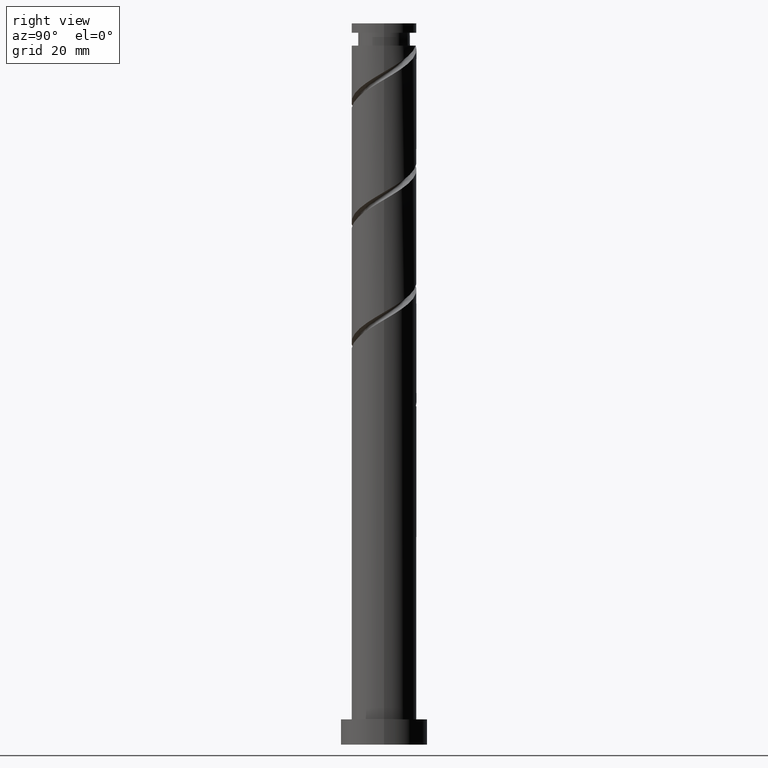
[diagram: clean part render]
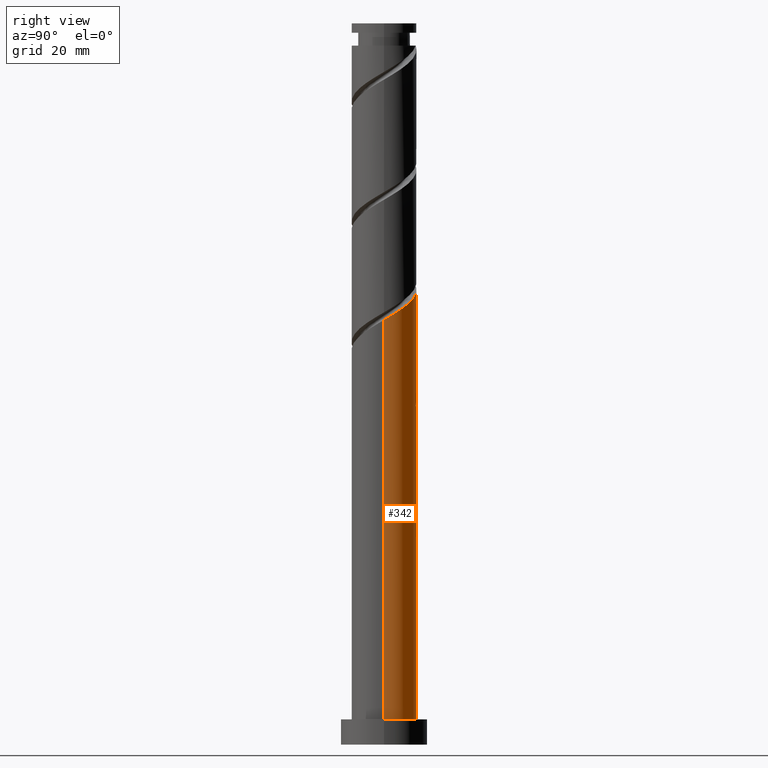
[diagram: same view with one face highlighted and labeled with its STEP entity id]
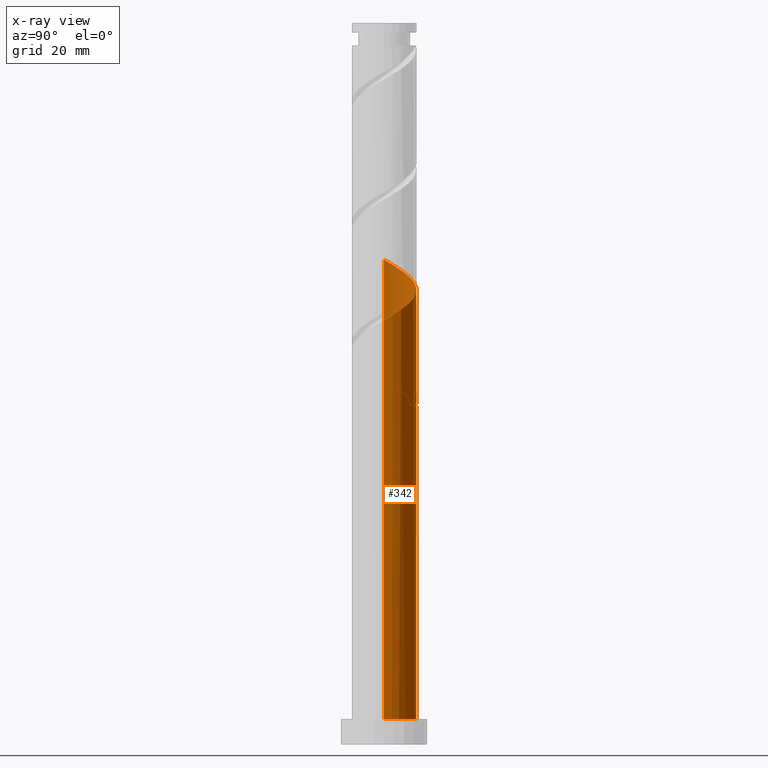
[diagram: x-ray of the same camera — body ghosted, the highlighted face saturated]
A machine part, right view. The second image highlights one B-rep face of the part: STEP entity #342.
The next image is the same camera in x-ray: the body ghosted, the highlighted face saturated — about 0% of this face is hidden behind the body in this view.
In plain terms, the highlighted cylindrical surface (edge-blend (fillet) strip) has radius 9 mm, axis along (-0, -0, -1).
Its self-contained STEP definition (entity closure, byte-faithful):
#17 = VERTEX_POINT ( 'NONE', #799 ) ;
#20 = EDGE_CURVE ( 'NONE', #559, #1390, #1598, .T. ) ;
#32 = CIRCLE ( 'NONE', #984, 9.000000000000001776 ) ;
#62 = CARTESIAN_POINT ( 'NONE',  ( -9.000000000000001776, 0.000000000000000000, 7.000000000000000000 ) ) ;
#101 = CARTESIAN_POINT ( 'NONE',  ( -0.5528326656022128915, 8.983004844919275200, 95.21396915586799992 ) ) ;
#111 = CARTESIAN_POINT ( 'NONE',  ( -8.910223043744863958, 1.735467689275518088, 100.0750802669791000 ) ) ;
#114 = CARTESIAN_POINT ( 'NONE',  ( -0.6298023580710770952, 9.055786646093720194, 126.4639691558679999 ) ) ;
#128 = CARTESIAN_POINT ( 'NONE',  ( -9.000000000000015987, 0.2766775649190528208, 134.2650165904075834 ) ) ;
#138 =( BOUNDED_CURVE ( )  B_SPLINE_CURVE ( 2, ( #1000, #285, #1359, #426, #960, #1496, #294, #824, #1369, #161, #1644, #228, #101, #1009, #1535 ),
 .UNSPECIFIED., .F., .T. ) 
 B_SPLINE_CURVE_WITH_KNOTS ( ( 3, 2, 2, 2, 2, 2, 2, 3 ),
 ( 0.9295317669814463502, 0.9375000000000000000, 0.9479166666666666297, 0.9583333333333333703, 0.9687500000000000000, 0.9791666666666666297, 0.9895833333333333703, 1.000000000000000000 ),
 .UNSPECIFIED. ) 
 CURVE ( )  GEOMETRIC_REPRESENTATION_ITEM ( )  RATIONAL_B_SPLINE_CURVE ( ( 0.9062941362546337309, 0.9031415850403380352, 0.9090909090909135015, 0.9013135103398318693, 0.9090909090909135015, 0.9013135103398318693, 0.9090909090909135015, 0.9013135103398318693, 0.9090909090909135015, 0.9013135103398318693, 0.9090909090909135015, 0.9013135103398318693, 0.9090909090909135015, 0.9013135103398318693, 0.9090909090909135015 ) ) 
 REPRESENTATION_ITEM ( '' )  );
#158 = LINE ( 'NONE', #1485, #1034 ) ;
#161 = CARTESIAN_POINT ( 'NONE',  ( -3.982468481593946397, 8.157442465804569665, 97.29730248920135693 ) ) ;
#187 = DIRECTION ( 'NONE',  ( -0.000000000000000000, -0.000000000000000000, -1.000000000000000000 ) ) ;
#199 = DIRECTION ( 'NONE',  ( -1.000000000000000000, 0.000000000000000000, 0.000000000000000000 ) ) ;
#222 = CARTESIAN_POINT ( 'NONE',  ( 1.790977386791920090, 8.820000000000000284, 93.82508026697911419 ) ) ;
#228 = CARTESIAN_POINT ( 'NONE',  ( -1.735467689275513425, 8.910223043744847971, 95.90841360031247120 ) ) ;
#259 = CARTESIAN_POINT ( 'NONE',  ( 8.820000000000012719, 1.790977386791917647, 118.8250802669791000 ) ) ;
#263 = CARTESIAN_POINT ( 'NONE',  ( -4.012735290006256506, 8.055926730819901849, 95.21396915586798571 ) ) ;
#267 = EDGE_CURVE ( 'NONE', #1050, #1477, #138, .T. ) ;
#272 = ORIENTED_EDGE ( 'NONE', *, *, #917, .F. ) ;
#277 = CARTESIAN_POINT ( 'NONE',  ( -5.073318164499761806, 7.527640107733495789, 95.90841360031247120 ) ) ;
#279 = VERTEX_POINT ( 'NONE', #1160 ) ;
#285 = CARTESIAN_POINT ( 'NONE',  ( -9.000000000000001776, 0.9045340337332984371, 102.6885538863332386 ) ) ;
#294 = CARTESIAN_POINT ( 'NONE',  ( -6.742855367982788728, 5.961031914565270817, 99.38063582253468553 ) ) ;
#342 = ADVANCED_FACE ( 'NONE', ( #1441 ), #867, .T. ) ;
#370 = VERTEX_POINT ( 'NONE', #62 ) ;
#395 = CARTESIAN_POINT ( 'NONE',  ( -9.000000000000001776, 0.000000000000000000, 200.0000000000000000 ) ) ;
#400 = CARTESIAN_POINT ( 'NONE',  ( -8.533832754774719476, 2.858968085434737016, 132.7139691558679715 ) ) ;
#412 = CARTESIAN_POINT ( 'NONE',  ( 7.527640107733501118, 5.073318164499759142, 120.9084136003124428 ) ) ;
#426 = CARTESIAN_POINT ( 'NONE',  ( -8.584213353906296362, 2.952152415512749872, 101.4639691558679999 ) ) ;
#449 = ORIENTED_EDGE ( 'NONE', *, *, #1196, .T. ) ;
#507 = EDGE_CURVE ( 'NONE', #569, #17, #1176, .T. ) ;
#531 = CARTESIAN_POINT ( 'NONE',  ( -4.012735290006256506, 8.055926730819901849, 128.5473024892013143 ) ) ;
#542 = CARTESIAN_POINT ( 'NONE',  ( -6.848745664630791374, 5.958070628232109200, 130.6306358225347140 ) ) ;
#559 = VERTEX_POINT ( 'NONE', #1253 ) ;
#569 = VERTEX_POINT ( 'NONE', #821 ) ;
#646 = CARTESIAN_POINT ( 'NONE',  ( -9.000000000000014211, -5.652530519688418356E-15, 134.4281802784357467 ) ) ;
#650 = CARTESIAN_POINT ( 'NONE',  ( -5.961031914565277035, 6.742855367982801162, 96.60285804475687144 ) ) ;
#653 = CARTESIAN_POINT ( 'NONE',  ( -8.910223043744863958, 1.735467689275518088, 133.4084136003124286 ) ) ;
#660 = DIRECTION ( 'NONE',  ( -6.847750913376832828E-30, -1.156482317317870976E-14, -1.000000000000000000 ) ) ;
#661 = CARTESIAN_POINT ( 'NONE',  ( 1.735467689275523417, 8.910223043744862181, 125.0750802669791142 ) ) ;
#670 = AXIS2_PLACEMENT_3D ( 'NONE', #893, #1407, #199 ) ;
#695 = CARTESIAN_POINT ( 'NONE',  ( -9.000000000000014211, -5.652530519688419145E-15, 101.0948469451023755 ) ) ;
#701 = EDGE_CURVE ( 'NONE', #559, #279, #158, .T. ) ;
#756 = ORIENTED_EDGE ( 'NONE', *, *, #507, .F. ) ;
#793 = ORIENTED_EDGE ( 'NONE', *, *, #701, .T. ) ;
#797 = CARTESIAN_POINT ( 'NONE',  ( -7.503094065217687181, 4.970269554913030241, 97.99174693364575717 ) ) ;
#799 = CARTESIAN_POINT ( 'NONE',  ( -9.000000000000014211, -5.652530519688418356E-15, 101.0948469451023755 ) ) ;
#809 = CARTESIAN_POINT ( 'NONE',  ( -6.848745664630791374, 5.958070628232109200, 97.29730248920134272 ) ) ;
#810 = CARTESIAN_POINT ( 'NONE',  ( 0.000000000000000000, 0.000000000000000000, 93.82508026697922787 ) ) ;
#811 = CARTESIAN_POINT ( 'NONE',  ( -1.790977386791917203, 8.820000000000012719, 127.1584136003124144 ) ) ;
#813 = DIRECTION ( 'NONE',  ( -0.000000000000000000, -0.000000000000000000, -1.000000000000000000 ) ) ;
#815 = CARTESIAN_POINT ( 'NONE',  ( -9.000000000000012434, 0.2766775649190551523, 100.9316832570742122 ) ) ;
#821 = CARTESIAN_POINT ( 'NONE',  ( -1.790977386791917203, 8.820000000000012719, 93.82508026697911419 ) ) ;
#824 = CARTESIAN_POINT ( 'NONE',  ( -5.958070628232096766, 6.848745664630782493, 98.68619137809022845 ) ) ;
#830 = CIRCLE ( 'NONE', #1456, 9.000000000000001776 ) ;
#850 = CARTESIAN_POINT ( 'NONE',  ( 0.000000000000000000, 0.000000000000000000, 7.000000000000000000 ) ) ;
#860 = DIRECTION ( 'NONE',  ( 1.000000000000000000, 0.000000000000000000, 0.000000000000000000 ) ) ;
#867 = CYLINDRICAL_SURFACE ( 'NONE', #670, 9.000000000000001776 ) ;
#881 = DIRECTION ( 'NONE',  ( -0.000000000000000000, -0.000000000000000000, -1.000000000000000000 ) ) ;
#893 = CARTESIAN_POINT ( 'NONE',  ( 0.000000000000000000, 0.000000000000000000, 200.0000000000000000 ) ) ;
#917 = EDGE_CURVE ( 'NONE', #17, #370, #1024, .T. ) ;
#921 = CARTESIAN_POINT ( 'NONE',  ( 9.000000000000014211, 2.093529822106821769E-16, 117.7615136117690611 ) ) ;
#926 = CARTESIAN_POINT ( 'NONE',  ( -2.952152415512752981, 8.584213353906312349, 94.51952471142355705 ) ) ;
#934 = CARTESIAN_POINT ( 'NONE',  ( -2.952152415512752981, 8.584213353906312349, 127.8528580447568999 ) ) ;
#945 = CARTESIAN_POINT ( 'NONE',  ( -8.157442465804583875, 3.982468481593956167, 132.0195247114235713 ) ) ;
#951 = CARTESIAN_POINT ( 'NONE',  ( 3.982468481593958387, 8.157442465804582099, 123.6861913780902285 ) ) ;
#960 = CARTESIAN_POINT ( 'NONE',  ( -8.055926730819891191, 4.012735290006253841, 100.7695247114235571 ) ) ;
#982 = EDGE_LOOP ( 'NONE', ( #1704, #793, #449, #272, #756, #1184, #1548, #1482 ) ) ;
#984 = AXIS2_PLACEMENT_3D ( 'NONE', #810, #660, #1358 ) ;
#1000 = CARTESIAN_POINT ( 'NONE',  ( -9.000000000000000000, 1.016857342166178170E-14, 103.2219802555224959 ) ) ;
#1009 = CARTESIAN_POINT ( 'NONE',  ( 0.6298023580710870872, 9.055786646093704206, 94.51952471142358547 ) ) ;
#1024 = LINE ( 'NONE', #1149, #1403 ) ;
#1034 = VECTOR ( 'NONE', #187, 1000.000000000000000 ) ;
#1050 = VERTEX_POINT ( 'NONE', #1198 ) ;
#1067 = CARTESIAN_POINT ( 'NONE',  ( -5.961031914565277035, 6.742855367982801162, 129.9361913780901716 ) ) ;
#1072 = EDGE_CURVE ( 'NONE', #1390, #1050, #1322, .T. ) ;
#1079 = CARTESIAN_POINT ( 'NONE',  ( 4.970269554913031129, 7.503094065217685404, 122.9917469336457714 ) ) ;
#1084 = VECTOR ( 'NONE', #813, 1000.000000000000000 ) ;
#1086 = CARTESIAN_POINT ( 'NONE',  ( 5.958070628232114530, 6.848745664630788710, 122.2973024892013427 ) ) ;
#1100 = CARTESIAN_POINT ( 'NONE',  ( -8.983004844919284082, 0.5528326656022175545, 100.7695247114235428 ) ) ;
#1149 = CARTESIAN_POINT ( 'NONE',  ( -9.000000000000001776, 0.000000000000000000, 200.0000000000000000 ) ) ;
#1160 = CARTESIAN_POINT ( 'NONE',  ( 9.000000000000001776, 1.102182119232617911E-15, 7.000000000000000000 ) ) ;
#1176 =( BOUNDED_CURVE ( )  B_SPLINE_CURVE ( 2, ( #1345, #926, #263, #277, #650, #809, #797, #1340, #1325, #111, #1100, #815, #695 ),
 .UNSPECIFIED., .F., .T. ) 
 B_SPLINE_CURVE_WITH_KNOTS ( ( 3, 2, 2, 2, 2, 2, 3 ),
 ( 0.000000000000000000, 0.01041666666666662966, 0.02083333333333337034, 0.03125000000000000000, 0.04166666666666662966, 0.05208333333333337034, 0.05453176698144638485 ),
 .UNSPECIFIED. ) 
 CURVE ( )  GEOMETRIC_REPRESENTATION_ITEM ( )  RATIONAL_B_SPLINE_CURVE ( ( 0.9090909090909201629, 0.9013135103398384196, 0.9090909090909201629, 0.9013135103398384196, 0.9090909090909201629, 0.9013135103398384196, 0.9090909090909201629, 0.9013135103398384196, 0.9090909090909201629, 0.9013135103398384196, 0.9090909090909201629, 0.9072628343904137749, 0.9062941362546402813 ) ) 
 REPRESENTATION_ITEM ( '' )  );
#1184 = ORIENTED_EDGE ( 'NONE', *, *, #1594, .T. ) ;
#1194 = CARTESIAN_POINT ( 'NONE',  ( 8.584213353906314126, 2.952152415512749428, 119.5195247114235571 ) ) ;
#1196 = EDGE_CURVE ( 'NONE', #279, #370, #830, .T. ) ;
#1198 = CARTESIAN_POINT ( 'NONE',  ( -9.000000000000000000, 1.016857342166178013E-14, 103.2219802555224959 ) ) ;
#1203 = CARTESIAN_POINT ( 'NONE',  ( 0.5528326656022229946, 8.983004844919284082, 125.7695247114235571 ) ) ;
#1210 = CARTESIAN_POINT ( 'NONE',  ( -9.000000000000014211, -5.652530519688417568E-15, 134.4281802784357467 ) ) ;
#1253 = CARTESIAN_POINT ( 'NONE',  ( 9.000000000000014211, 2.093529822106821769E-16, 117.7615136117690611 ) ) ;
#1322 = LINE ( 'NONE', #395, #1084 ) ;
#1325 = CARTESIAN_POINT ( 'NONE',  ( -8.533832754774719476, 2.858968085434737016, 99.38063582253464290 ) ) ;
#1335 = CARTESIAN_POINT ( 'NONE',  ( 6.742855367982805603, 5.961031914565271705, 121.6028580447568714 ) ) ;
#1340 = CARTESIAN_POINT ( 'NONE',  ( -8.157442465804583875, 3.982468481593956167, 98.68619137809027109 ) ) ;
#1345 = CARTESIAN_POINT ( 'NONE',  ( -1.790977386791917203, 8.820000000000012719, 93.82508026697911419 ) ) ;
#1352 = CARTESIAN_POINT ( 'NONE',  ( -8.983004844919284082, 0.5528326656022175545, 134.1028580447568856 ) ) ;
#1358 = DIRECTION ( 'NONE',  ( 0.000000000000000000, 1.000000000000000000, -1.079383496163346391E-14 ) ) ;
#1359 = CARTESIAN_POINT ( 'NONE',  ( -8.820000000000000284, 1.790977386791918535, 102.1584136003124570 ) ) ;
#1369 = CARTESIAN_POINT ( 'NONE',  ( -4.970269554913022247, 7.503094065217677411, 97.99174693364577138 ) ) ;
#1390 = VERTEX_POINT ( 'NONE', #646 ) ;
#1403 = VECTOR ( 'NONE', #881, 1000.000000000000000 ) ;
#1407 = DIRECTION ( 'NONE',  ( -0.000000000000000000, -0.000000000000000000, -1.000000000000000000 ) ) ;
#1441 = FACE_OUTER_BOUND ( 'NONE', #982, .T. ) ;
#1456 = AXIS2_PLACEMENT_3D ( 'NONE', #850, #1676, #860 ) ;
#1465 = CARTESIAN_POINT ( 'NONE',  ( 8.055926730819905401, 4.012735290006252953, 120.2139691558679857 ) ) ;
#1477 = VERTEX_POINT ( 'NONE', #222 ) ;
#1482 = ORIENTED_EDGE ( 'NONE', *, *, #1072, .F. ) ;
#1485 = CARTESIAN_POINT ( 'NONE',  ( 9.000000000000001776, 1.102182119232617911E-15, 200.0000000000000000 ) ) ;
#1487 = CARTESIAN_POINT ( 'NONE',  ( -7.503094065217687181, 4.970269554913030241, 131.3250802669790858 ) ) ;
#1496 = CARTESIAN_POINT ( 'NONE',  ( -7.527640107733483354, 5.073318164499758254, 100.0750802669791142 ) ) ;
#1535 = CARTESIAN_POINT ( 'NONE',  ( 1.790977386791920090, 8.820000000000000284, 93.82508026697911419 ) ) ;
#1548 = ORIENTED_EDGE ( 'NONE', *, *, #267, .F. ) ;
#1594 = EDGE_CURVE ( 'NONE', #569, #1477, #32, .T. ) ;
#1598 =( BOUNDED_CURVE ( )  B_SPLINE_CURVE ( 2, ( #921, #1744, #259, #1194, #1465, #412, #1335, #1086, #1079, #951, #1750, #661, #1203, #114, #811, #934, #531, #1739, #1067, #542, #1487, #945, #400, #653, #1352, #128, #1210 ),
 .UNSPECIFIED., .F., .T. ) 
 B_SPLINE_CURVE_WITH_KNOTS ( ( 3, 2, 2, 2, 2, 2, 2, 2, 2, 2, 2, 2, 2, 3 ),
 ( 0.1795317669814464612, 0.1875000000000000000, 0.1979166666666666297, 0.2083333333333333703, 0.2187500000000000000, 0.2291666666666666297, 0.2395833333333333703, 0.2500000000000000000, 0.2604166666666666297, 0.2708333333333333703, 0.2812500000000000000, 0.2916666666666666297, 0.3020833333333333703, 0.3045317669814464057 ),
 .UNSPECIFIED. ) 
 CURVE ( )  GEOMETRIC_REPRESENTATION_ITEM ( )  RATIONAL_B_SPLINE_CURVE ( ( 0.9062941362546402813, 0.9031415850403448076, 0.9090909090909201629, 0.9013135103398384196, 0.9090909090909201629, 0.9013135103398384196, 0.9090909090909201629, 0.9013135103398384196, 0.9090909090909201629, 0.9013135103398384196, 0.9090909090909201629, 0.9013135103398384196, 0.9090909090909201629, 0.9013135103398384196, 0.9090909090909201629, 0.9013135103398384196, 0.9090909090909201629, 0.9013135103398384196, 0.9090909090909201629, 0.9013135103398384196, 0.9090909090909201629, 0.9013135103398384196, 0.9090909090909201629, 0.9013135103398384196, 0.9090909090909201629, 0.9072628343904138859, 0.9062941362546403923 ) ) 
 REPRESENTATION_ITEM ( '' )  );
#1644 = CARTESIAN_POINT ( 'NONE',  ( -2.858968085434729911, 8.533832754774707041, 96.60285804475691407 ) ) ;
#1676 = DIRECTION ( 'NONE',  ( 0.000000000000000000, 0.000000000000000000, 1.000000000000000000 ) ) ;
#1704 = ORIENTED_EDGE ( 'NONE', *, *, #20, .F. ) ;
#1739 = CARTESIAN_POINT ( 'NONE',  ( -5.073318164499761806, 7.527640107733495789, 129.2417469336457714 ) ) ;
#1744 = CARTESIAN_POINT ( 'NONE',  ( 9.000000000000012434, 0.9045340337333021008, 118.2949399809583042 ) ) ;
#1750 = CARTESIAN_POINT ( 'NONE',  ( 2.858968085434740125, 8.533832754774715923, 124.3806358225346571 ) ) ;